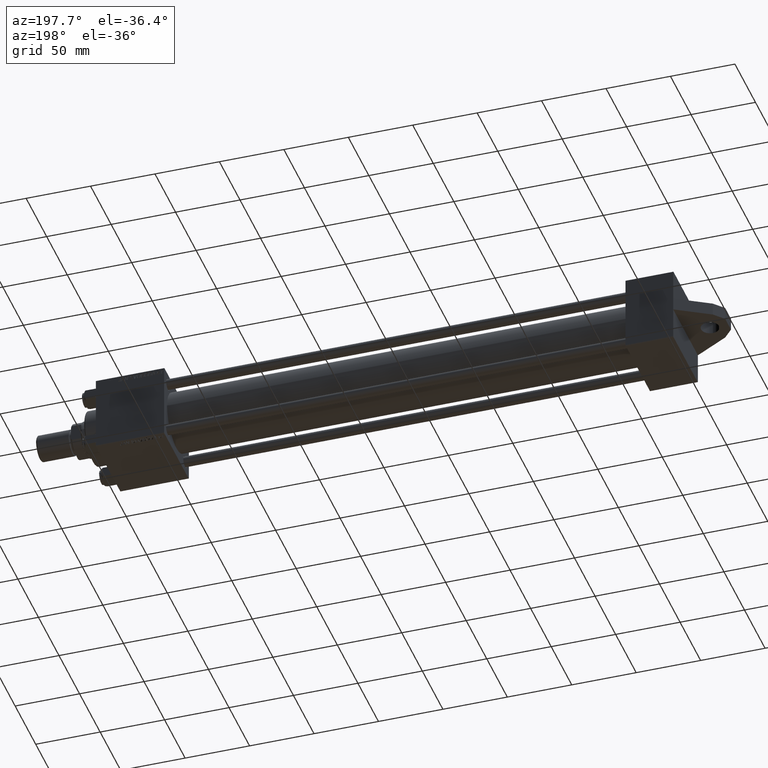
[diagram: clean part render]
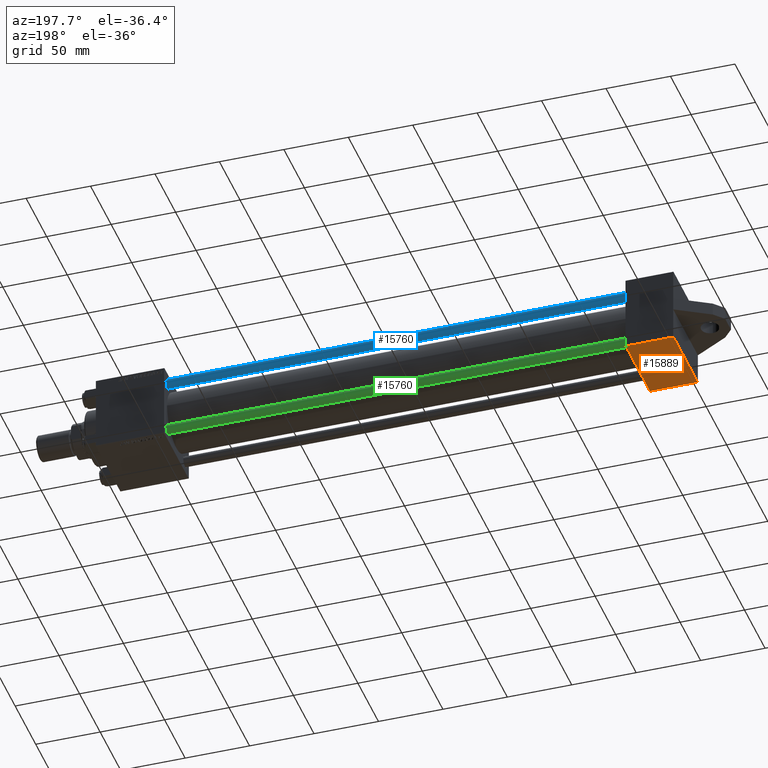
[diagram: same view with three faces highlighted in distinct colors, each labeled with its STEP entity id]
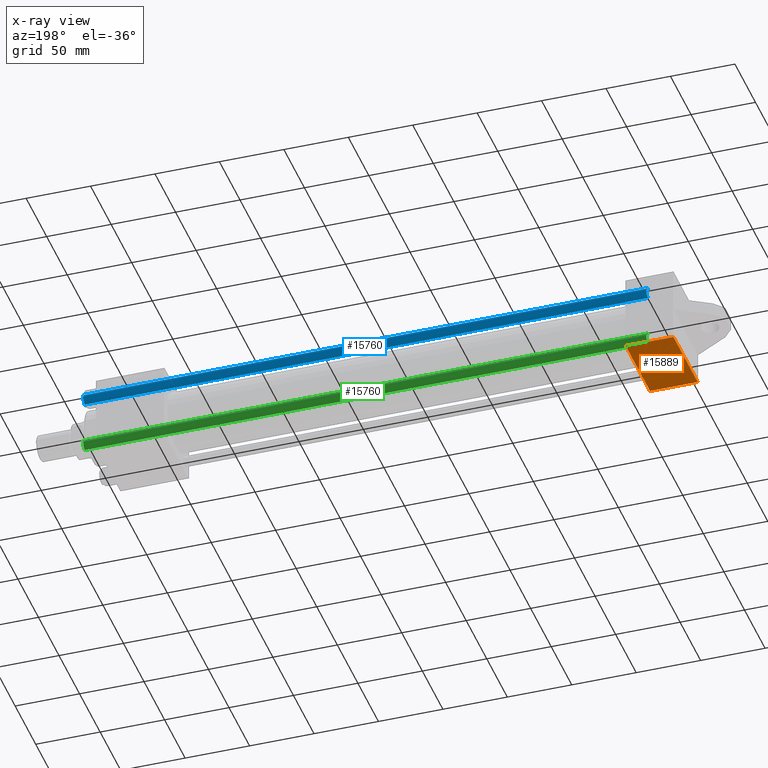
[diagram: x-ray of the same camera — body ghosted, the three highlighted faces saturated]
A machine part, auxiliary view with three faces highlighted in distinct colors.
The next image is the same camera in x-ray (body ghosted, the three faces saturated) — at least one of them is partly hidden behind the body in this view.
Their STEP definitions:

[orange] entity #15889 — the highlighted planar face has unit normal (-0, 0, 1).
#1048 = ORIENTED_EDGE ( 'NONE', *, *, #30067, .F. ) ;
#1168 = VERTEX_POINT ( 'NONE', #40140 ) ;
#1917 = VECTOR ( 'NONE', #6075, 1000.000000000000000 ) ;
#3660 = LINE ( 'NONE', #36117, #41152 ) ;
#3966 = DIRECTION ( 'NONE',  ( 1.000000000000000000, 0.000000000000000000, 0.000000000000000000 ) ) ;
#4551 = EDGE_CURVE ( 'NONE', #6257, #24118, #22069, .T. ) ;
#6075 = DIRECTION ( 'NONE',  ( 0.000000000000000000, 0.000000000000000000, -1.000000000000000000 ) ) ;
#6257 = VERTEX_POINT ( 'NONE', #6709 ) ;
#6709 = CARTESIAN_POINT ( 'NONE',  ( 0.000000000000000000, -30.00000000000000000, -29.50000000000001776 ) ) ;
#6992 = CARTESIAN_POINT ( 'NONE',  ( 0.000000000000000000, -30.00000000000000000, 29.99999999999999289 ) ) ;
#7088 = DIRECTION ( 'NONE',  ( -0.000000000000000000, 1.000000000000000000, 0.000000000000000000 ) ) ;
#9930 = EDGE_LOOP ( 'NONE', ( #17058, #38276, #1048, #14185 ) ) ;
#10529 = LINE ( 'NONE', #6992, #1917 ) ;
#13058 = LINE ( 'NONE', #26956, #15510 ) ;
#13524 = CARTESIAN_POINT ( 'NONE',  ( 0.000000000000000000, -30.00000000000000000, 29.49999999999999289 ) ) ;
#14185 = ORIENTED_EDGE ( 'NONE', *, *, #28366, .T. ) ;
#15510 = VECTOR ( 'NONE', #38002, 1000.000000000000000 ) ;
#15889 = ADVANCED_FACE ( 'NONE', ( #21663 ), #28954, .F. ) ;
#17058 = ORIENTED_EDGE ( 'NONE', *, *, #26292, .T. ) ;
#17397 = CARTESIAN_POINT ( 'NONE',  ( 37.00000000000000000, -30.00000000000000000, -29.50000000000001776 ) ) ;
#18130 = DIRECTION ( 'NONE',  ( 0.000000000000000000, -0.000000000000000000, 1.000000000000000000 ) ) ;
#20739 = CARTESIAN_POINT ( 'NONE',  ( 37.00000000000000000, -30.00000000000000000, 29.99999999999999289 ) ) ;
#21663 = FACE_OUTER_BOUND ( 'NONE', #9930, .T. ) ;
#22069 = LINE ( 'NONE', #17397, #27423 ) ;
#24118 = VERTEX_POINT ( 'NONE', #32963 ) ;
#25406 = VERTEX_POINT ( 'NONE', #13524 ) ;
#26292 = EDGE_CURVE ( 'NONE', #25406, #6257, #10529, .T. ) ;
#26956 = CARTESIAN_POINT ( 'NONE',  ( 37.00000000000000000, -30.00000000000000000, 29.49999999999999289 ) ) ;
#27423 = VECTOR ( 'NONE', #3966, 1000.000000000000000 ) ;
#28366 = EDGE_CURVE ( 'NONE', #1168, #25406, #13058, .T. ) ;
#28954 = PLANE ( 'NONE',  #36261 ) ;
#30067 = EDGE_CURVE ( 'NONE', #1168, #24118, #3660, .T. ) ;
#32963 = CARTESIAN_POINT ( 'NONE',  ( 37.00000000000000000, -30.00000000000000000, -29.50000000000001776 ) ) ;
#36117 = CARTESIAN_POINT ( 'NONE',  ( 37.00000000000000000, -30.00000000000000000, 29.99999999999999289 ) ) ;
#36261 = AXIS2_PLACEMENT_3D ( 'NONE', #20739, #7088, #18130 ) ;
#38002 = DIRECTION ( 'NONE',  ( -1.000000000000000000, 0.000000000000000000, 0.000000000000000000 ) ) ;
#38276 = ORIENTED_EDGE ( 'NONE', *, *, #4551, .T. ) ;
#40140 = CARTESIAN_POINT ( 'NONE',  ( 37.00000000000000000, -30.00000000000000000, 29.49999999999999289 ) ) ;
#41152 = VECTOR ( 'NONE', #43416, 1000.000000000000000 ) ;
#43416 = DIRECTION ( 'NONE',  ( 0.000000000000000000, 0.000000000000000000, -1.000000000000000000 ) ) ;

[blue] entity #15760 — the highlighted cylindrical surface (edge-blend (fillet) strip) has radius 4 mm, axis along (-1, 0, -0).
#977 = CIRCLE ( 'NONE', #10738, 4.000000000000000000 ) ;
#1709 = CYLINDRICAL_SURFACE ( 'NONE', #6982, 4.000000000000000000 ) ;
#2343 = DIRECTION ( 'NONE',  ( 1.000000000000000000, 0.000000000000000000, 0.000000000000000000 ) ) ;
#2400 = CARTESIAN_POINT ( 'NONE',  ( 0.000000000000000000, 0.000000000000000000, 438.0000000000000000 ) ) ;
#2936 = AXIS2_PLACEMENT_3D ( 'NONE', #9878, #6342, #2343 ) ;
#3644 = VECTOR ( 'NONE', #46559, 1000.000000000000000 ) ;
#6342 = DIRECTION ( 'NONE',  ( 0.000000000000000000, 0.000000000000000000, -1.000000000000000000 ) ) ;
#6411 = CARTESIAN_POINT ( 'NONE',  ( 0.000000000000000000, 0.000000000000000000, 0.5000000000000559552 ) ) ;
#6982 = AXIS2_PLACEMENT_3D ( 'NONE', #2400, #27121, #16751 ) ;
#7341 = CARTESIAN_POINT ( 'NONE',  ( -4.000000000000000000, 0.000000000000000000, 438.0000000000000000 ) ) ;
#8369 = VERTEX_POINT ( 'NONE', #31547 ) ;
#9878 = CARTESIAN_POINT ( 'NONE',  ( 0.000000000000000000, 0.000000000000000000, 437.5000000000000568 ) ) ;
#10738 = AXIS2_PLACEMENT_3D ( 'NONE', #6411, #12774, #20059 ) ;
#11028 = CARTESIAN_POINT ( 'NONE',  ( 4.000000000000000000, 4.898587196589412829E-16, 438.0000000000000000 ) ) ;
#11103 = DIRECTION ( 'NONE',  ( -0.000000000000000000, -0.000000000000000000, -1.000000000000000000 ) ) ;
#12769 = FACE_OUTER_BOUND ( 'NONE', #30508, .T. ) ;
#12774 = DIRECTION ( 'NONE',  ( -0.000000000000000000, -0.000000000000000000, 1.000000000000000000 ) ) ;
#13453 = CIRCLE ( 'NONE', #2936, 4.000000000000000000 ) ;
#14415 = EDGE_CURVE ( 'NONE', #34034, #17143, #13453, .T. ) ;
#15021 = CARTESIAN_POINT ( 'NONE',  ( 4.000000000000000000, 4.898587196589412829E-16, 437.5000000000000568 ) ) ;
#15760 = ADVANCED_FACE ( 'NONE', ( #12769 ), #1709, .T. ) ;
#16264 = ORIENTED_EDGE ( 'NONE', *, *, #44529, .F. ) ;
#16564 = EDGE_CURVE ( 'NONE', #18746, #8369, #977, .T. ) ;
#16751 = DIRECTION ( 'NONE',  ( -1.000000000000000000, 0.000000000000000000, 0.000000000000000000 ) ) ;
#17143 = VERTEX_POINT ( 'NONE', #15021 ) ;
#18746 = VERTEX_POINT ( 'NONE', #23381 ) ;
#20059 = DIRECTION ( 'NONE',  ( 1.000000000000000000, 0.000000000000000000, 0.000000000000000000 ) ) ;
#21587 = VECTOR ( 'NONE', #11103, 1000.000000000000000 ) ;
#23381 = CARTESIAN_POINT ( 'NONE',  ( 4.000000000000000000, 4.898587196589412829E-16, 0.5000000000000559552 ) ) ;
#27121 = DIRECTION ( 'NONE',  ( -0.000000000000000000, -0.000000000000000000, -1.000000000000000000 ) ) ;
#29059 = CARTESIAN_POINT ( 'NONE',  ( -4.000000000000000000, 0.000000000000000000, 437.5000000000000568 ) ) ;
#30508 = EDGE_LOOP ( 'NONE', ( #34031, #38589, #45369, #16264 ) ) ;
#31547 = CARTESIAN_POINT ( 'NONE',  ( -4.000000000000000000, 0.000000000000000000, 0.5000000000000559552 ) ) ;
#34031 = ORIENTED_EDGE ( 'NONE', *, *, #14415, .T. ) ;
#34034 = VERTEX_POINT ( 'NONE', #29059 ) ;
#36881 = EDGE_CURVE ( 'NONE', #17143, #18746, #43254, .T. ) ;
#38589 = ORIENTED_EDGE ( 'NONE', *, *, #36881, .T. ) ;
#43254 = LINE ( 'NONE', #11028, #3644 ) ;
#43326 = LINE ( 'NONE', #7341, #21587 ) ;
#44529 = EDGE_CURVE ( 'NONE', #34034, #8369, #43326, .T. ) ;
#45369 = ORIENTED_EDGE ( 'NONE', *, *, #16564, .T. ) ;
#46559 = DIRECTION ( 'NONE',  ( -0.000000000000000000, -0.000000000000000000, -1.000000000000000000 ) ) ;

[green] entity #15760 — the highlighted cylindrical surface (edge-blend (fillet) strip) has radius 4 mm, axis along (1, -0, -0).
#977 = CIRCLE ( 'NONE', #10738, 4.000000000000000000 ) ;
#1709 = CYLINDRICAL_SURFACE ( 'NONE', #6982, 4.000000000000000000 ) ;
#2343 = DIRECTION ( 'NONE',  ( 1.000000000000000000, 0.000000000000000000, 0.000000000000000000 ) ) ;
#2400 = CARTESIAN_POINT ( 'NONE',  ( 0.000000000000000000, 0.000000000000000000, 438.0000000000000000 ) ) ;
#2936 = AXIS2_PLACEMENT_3D ( 'NONE', #9878, #6342, #2343 ) ;
#3644 = VECTOR ( 'NONE', #46559, 1000.000000000000000 ) ;
#6342 = DIRECTION ( 'NONE',  ( 0.000000000000000000, 0.000000000000000000, -1.000000000000000000 ) ) ;
#6411 = CARTESIAN_POINT ( 'NONE',  ( 0.000000000000000000, 0.000000000000000000, 0.5000000000000559552 ) ) ;
#6982 = AXIS2_PLACEMENT_3D ( 'NONE', #2400, #27121, #16751 ) ;
#7341 = CARTESIAN_POINT ( 'NONE',  ( -4.000000000000000000, 0.000000000000000000, 438.0000000000000000 ) ) ;
#8369 = VERTEX_POINT ( 'NONE', #31547 ) ;
#9878 = CARTESIAN_POINT ( 'NONE',  ( 0.000000000000000000, 0.000000000000000000, 437.5000000000000568 ) ) ;
#10738 = AXIS2_PLACEMENT_3D ( 'NONE', #6411, #12774, #20059 ) ;
#11028 = CARTESIAN_POINT ( 'NONE',  ( 4.000000000000000000, 4.898587196589412829E-16, 438.0000000000000000 ) ) ;
#11103 = DIRECTION ( 'NONE',  ( -0.000000000000000000, -0.000000000000000000, -1.000000000000000000 ) ) ;
#12769 = FACE_OUTER_BOUND ( 'NONE', #30508, .T. ) ;
#12774 = DIRECTION ( 'NONE',  ( -0.000000000000000000, -0.000000000000000000, 1.000000000000000000 ) ) ;
#13453 = CIRCLE ( 'NONE', #2936, 4.000000000000000000 ) ;
#14415 = EDGE_CURVE ( 'NONE', #34034, #17143, #13453, .T. ) ;
#15021 = CARTESIAN_POINT ( 'NONE',  ( 4.000000000000000000, 4.898587196589412829E-16, 437.5000000000000568 ) ) ;
#15760 = ADVANCED_FACE ( 'NONE', ( #12769 ), #1709, .T. ) ;
#16264 = ORIENTED_EDGE ( 'NONE', *, *, #44529, .F. ) ;
#16564 = EDGE_CURVE ( 'NONE', #18746, #8369, #977, .T. ) ;
#16751 = DIRECTION ( 'NONE',  ( -1.000000000000000000, 0.000000000000000000, 0.000000000000000000 ) ) ;
#17143 = VERTEX_POINT ( 'NONE', #15021 ) ;
#18746 = VERTEX_POINT ( 'NONE', #23381 ) ;
#20059 = DIRECTION ( 'NONE',  ( 1.000000000000000000, 0.000000000000000000, 0.000000000000000000 ) ) ;
#21587 = VECTOR ( 'NONE', #11103, 1000.000000000000000 ) ;
#23381 = CARTESIAN_POINT ( 'NONE',  ( 4.000000000000000000, 4.898587196589412829E-16, 0.5000000000000559552 ) ) ;
#27121 = DIRECTION ( 'NONE',  ( -0.000000000000000000, -0.000000000000000000, -1.000000000000000000 ) ) ;
#29059 = CARTESIAN_POINT ( 'NONE',  ( -4.000000000000000000, 0.000000000000000000, 437.5000000000000568 ) ) ;
#30508 = EDGE_LOOP ( 'NONE', ( #34031, #38589, #45369, #16264 ) ) ;
#31547 = CARTESIAN_POINT ( 'NONE',  ( -4.000000000000000000, 0.000000000000000000, 0.5000000000000559552 ) ) ;
#34031 = ORIENTED_EDGE ( 'NONE', *, *, #14415, .T. ) ;
#34034 = VERTEX_POINT ( 'NONE', #29059 ) ;
#36881 = EDGE_CURVE ( 'NONE', #17143, #18746, #43254, .T. ) ;
#38589 = ORIENTED_EDGE ( 'NONE', *, *, #36881, .T. ) ;
#43254 = LINE ( 'NONE', #11028, #3644 ) ;
#43326 = LINE ( 'NONE', #7341, #21587 ) ;
#44529 = EDGE_CURVE ( 'NONE', #34034, #8369, #43326, .T. ) ;
#45369 = ORIENTED_EDGE ( 'NONE', *, *, #16564, .T. ) ;
#46559 = DIRECTION ( 'NONE',  ( -0.000000000000000000, -0.000000000000000000, -1.000000000000000000 ) ) ;